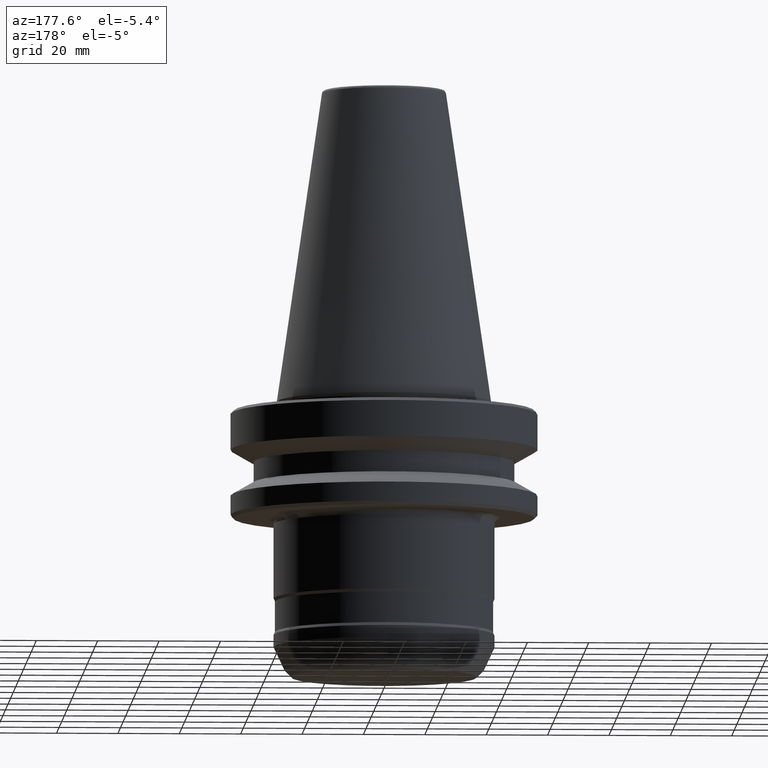
[diagram: clean part render]
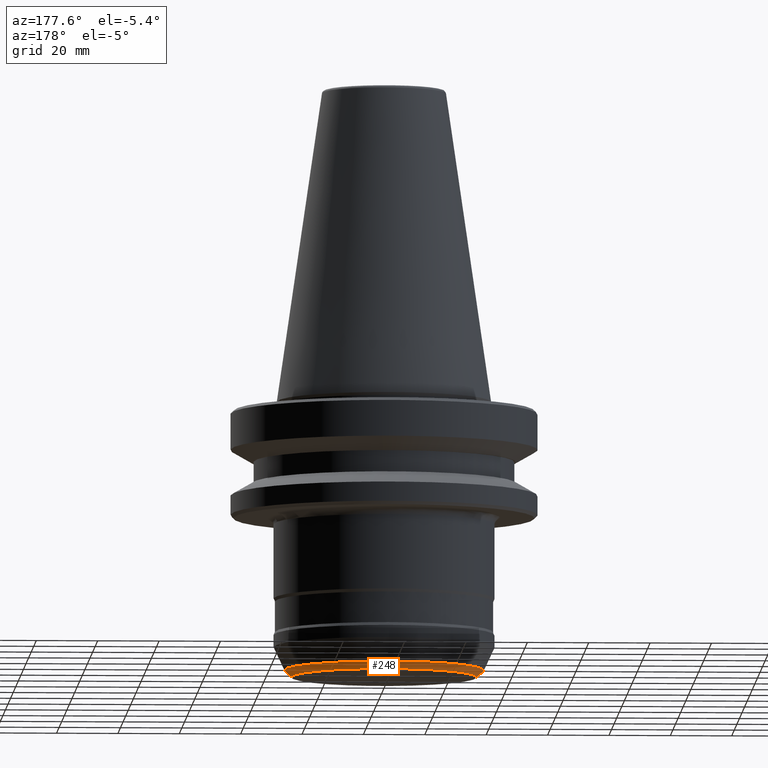
[diagram: same view with one face highlighted and labeled with its STEP entity id]
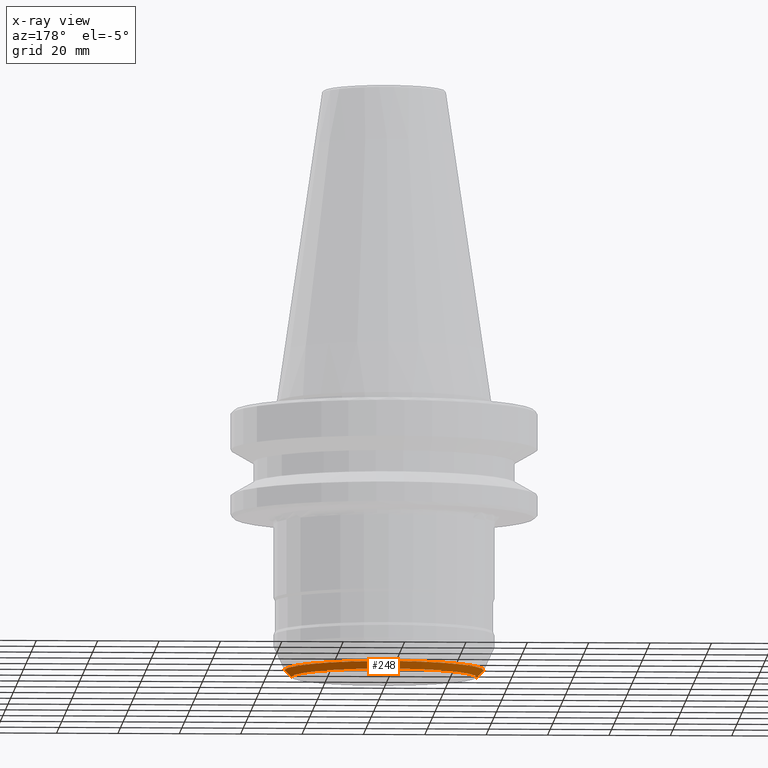
[diagram: x-ray of the same camera — body ghosted, the highlighted face saturated]
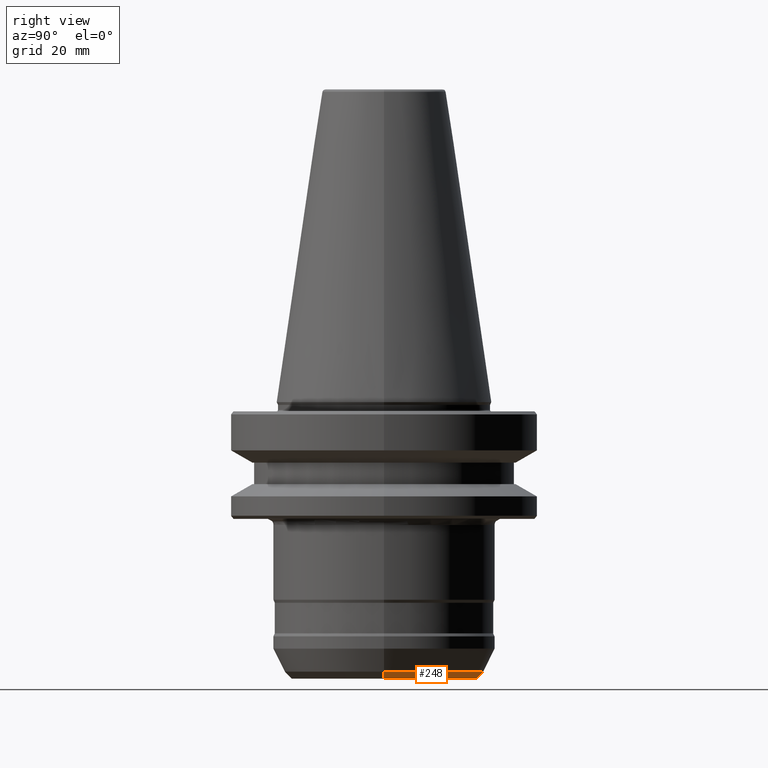
[diagram: same view with one face highlighted and labeled with its STEP entity id]
A machine part, auxiliary view. The second image highlights one B-rep face of the part: STEP entity #248.
The next image is the same camera in x-ray: the body ghosted, the highlighted face saturated — about 0% of this face is hidden behind the body in this view.
A second angle (right view) of the same face is appended — the face is thin or edge-on in the first view.
In plain terms, the highlighted conical surface has half-angle 45 deg.
Its self-contained STEP definition (entity closure, byte-faithful):
#43 = AXIS2_PLACEMENT_3D ( 'NONE', #281, #1185, #722 ) ;
#58 = DIRECTION ( 'NONE',  ( 0.7071067811865459100, 0.0000000000000000000, 0.7071067811865491300 ) ) ;
#67 = CARTESIAN_POINT ( 'NONE',  ( 32.50000000322873500, 0.0000000000000000000, -87.75000000001486500 ) ) ;
#70 = EDGE_CURVE ( 'NONE', #773, #490, #322, .T. ) ;
#77 = DIRECTION ( 'NONE',  ( -0.0000000000000000000, -0.0000000000000000000, 1.000000000000000000 ) ) ;
#111 = CARTESIAN_POINT ( 'NONE',  ( 0.0000000000000000000, 0.0000000000000000000, -87.75000000001486500 ) ) ;
#112 = VERTEX_POINT ( 'NONE', #679 ) ;
#119 = VECTOR ( 'NONE', #58, 1000.000000000000100 ) ;
#176 = AXIS2_PLACEMENT_3D ( 'NONE', #1174, #77, #943 ) ;
#232 = EDGE_CURVE ( 'NONE', #1044, #112, #1184, .T. ) ;
#248 = ADVANCED_FACE ( 'NONE', ( #1152 ), #623, .T. ) ;
#281 = CARTESIAN_POINT ( 'NONE',  ( 0.0000000000000000000, 0.0000000000000000000, -90.00000000001408300 ) ) ;
#322 = CIRCLE ( 'NONE', #655, 32.50000000322873500 ) ;
#353 = DIRECTION ( 'NONE',  ( -0.0000000000000000000, -0.0000000000000000000, 1.000000000000000000 ) ) ;
#415 = LINE ( 'NONE', #1112, #632 ) ;
#480 = ORIENTED_EDGE ( 'NONE', *, *, #70, .F. ) ;
#490 = VERTEX_POINT ( 'NONE', #668 ) ;
#623 = CONICAL_SURFACE ( 'NONE', #176, 32.50000000322873500, 0.7853981633974459500 ) ;
#632 = VECTOR ( 'NONE', #739, 1000.000000000000100 ) ;
#636 = ORIENTED_EDGE ( 'NONE', *, *, #1001, .F. ) ;
#655 = AXIS2_PLACEMENT_3D ( 'NONE', #111, #353, #1047 ) ;
#668 = CARTESIAN_POINT ( 'NONE',  ( -32.50000000322873500, 3.980102097624304100E-015, -87.75000000001486500 ) ) ;
#679 = CARTESIAN_POINT ( 'NONE',  ( -30.25000000322952300, 3.842329332720275200E-015, -90.00000000001408300 ) ) ;
#722 = DIRECTION ( 'NONE',  ( 1.000000000000000000, 0.0000000000000000000, 0.0000000000000000000 ) ) ;
#731 = EDGE_LOOP ( 'NONE', ( #770, #999, #480, #636 ) ) ;
#739 = DIRECTION ( 'NONE',  ( -0.7071067811865459100, 8.659560562354911900E-017, 0.7071067811865491300 ) ) ;
#770 = ORIENTED_EDGE ( 'NONE', *, *, #232, .T. ) ;
#773 = VERTEX_POINT ( 'NONE', #67 ) ;
#943 = DIRECTION ( 'NONE',  ( 1.000000000000000000, 0.0000000000000000000, 0.0000000000000000000 ) ) ;
#964 = EDGE_CURVE ( 'NONE', #112, #490, #415, .T. ) ;
#999 = ORIENTED_EDGE ( 'NONE', *, *, #964, .T. ) ;
#1001 = EDGE_CURVE ( 'NONE', #1044, #773, #1106, .T. ) ;
#1044 = VERTEX_POINT ( 'NONE', #1125 ) ;
#1047 = DIRECTION ( 'NONE',  ( 1.000000000000000000, 0.0000000000000000000, 0.0000000000000000000 ) ) ;
#1106 = LINE ( 'NONE', #1204, #119 ) ;
#1112 = CARTESIAN_POINT ( 'NONE',  ( -32.50000000322873500, 3.980102097624304100E-015, -87.75000000001486500 ) ) ;
#1125 = CARTESIAN_POINT ( 'NONE',  ( 30.25000000322952300, 0.0000000000000000000, -90.00000000001408300 ) ) ;
#1152 = FACE_OUTER_BOUND ( 'NONE', #731, .T. ) ;
#1174 = CARTESIAN_POINT ( 'NONE',  ( 0.0000000000000000000, 0.0000000000000000000, -87.75000000001486500 ) ) ;
#1184 = CIRCLE ( 'NONE', #43, 30.25000000322952300 ) ;
#1185 = DIRECTION ( 'NONE',  ( -0.0000000000000000000, -0.0000000000000000000, 1.000000000000000000 ) ) ;
#1204 = CARTESIAN_POINT ( 'NONE',  ( 32.50000000322873500, 0.0000000000000000000, -87.75000000001486500 ) ) ;